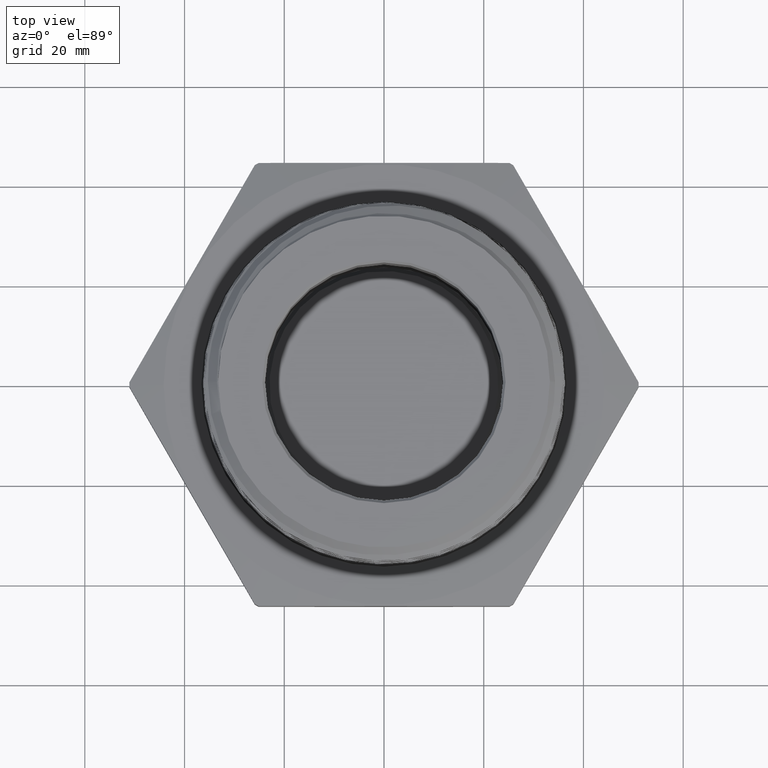
[diagram: clean part render]
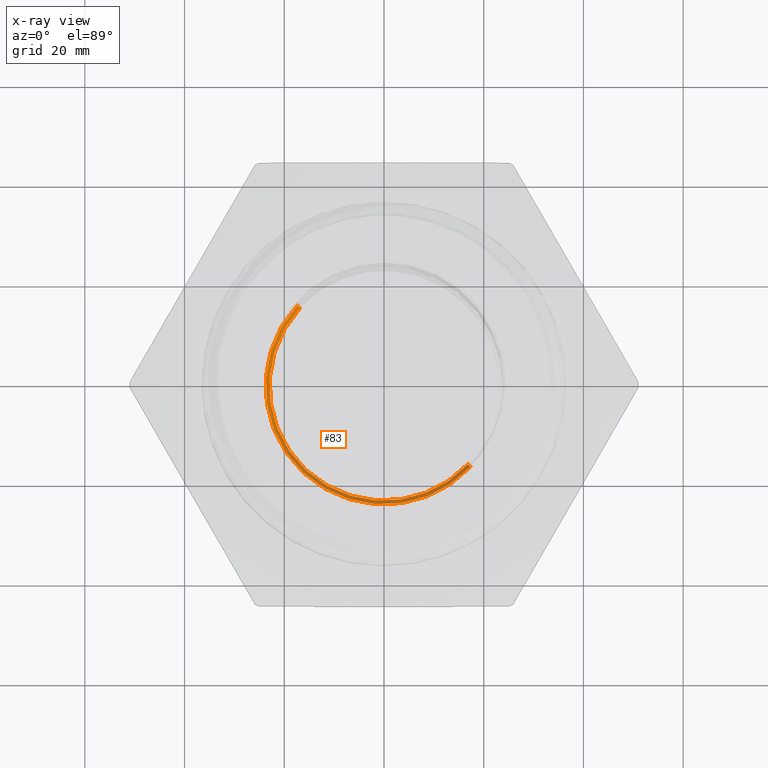
[diagram: x-ray — body ghosted, one internal face saturated and labeled with its STEP entity id]
A machine part, top view, then the same camera in x-ray: the body is ghosted and one INTERNAL B-rep face — a face not visible from any outside direction — is saturated and labeled: STEP entity #83.
In plain terms, the highlighted conical surface has half-angle 45 deg.
Its self-contained STEP definition (entity closure, byte-faithful):
#83 = ADVANCED_FACE ( 'NONE', ( #8116 ), #8121, .T. ) ;
#176 = AXIS2_PLACEMENT_3D ( 'NONE', #4977, #4978, #4979 ) ;
#178 = AXIS2_PLACEMENT_3D ( 'NONE', #4983, #4984, #4985 ) ;
#993 = LINE ( 'NONE', #5790, #996 ) ;
#996 = VECTOR ( 'NONE', #5792, 39.37007874015748100 ) ;
#2415 = AXIS2_PLACEMENT_3D ( 'NONE', #3508, #3504, #3505 ) ;
#2488 = ORIENTED_EDGE ( 'NONE', *, *, #6579, .F. ) ;
#2489 = ORIENTED_EDGE ( 'NONE', *, *, #6463, .F. ) ;
#2499 = VERTEX_POINT ( 'NONE', #3709 ) ;
#2503 = VERTEX_POINT ( 'NONE', #3713 ) ;
#2506 = VERTEX_POINT ( 'NONE', #3716 ) ;
#2508 = VERTEX_POINT ( 'NONE', #3718 ) ;
#2809 = LINE ( 'NONE', #4966, #2813 ) ;
#2813 = VECTOR ( 'NONE', #4964, 39.37007874015748100 ) ;
#2818 = CIRCLE ( 'NONE', #176, 0.9350000000000000500 ) ;
#2820 = CIRCLE ( 'NONE', #178, 0.9050000000000084600 ) ;
#3504 = DIRECTION ( 'NONE',  ( -0.0000000000000000000, -0.0000000000000000000, 1.000000000000000000 ) ) ;
#3505 = DIRECTION ( 'NONE',  ( 1.000000000000000000, 0.0000000000000000000, 0.0000000000000000000 ) ) ;
#3508 = CARTESIAN_POINT ( 'NONE',  ( 0.1853830760401613500, -0.6095117751713916600, 0.02999999999999162000 ) ) ;
#3709 = CARTESIAN_POINT ( 'NONE',  ( 1.120383076040161400, -0.6095117751713914300, 0.02999999999999162000 ) ) ;
#3713 = CARTESIAN_POINT ( 'NONE',  ( -0.7496169239598385900, -0.6095117751713916600, 0.02999999999999162000 ) ) ;
#3716 = CARTESIAN_POINT ( 'NONE',  ( -0.7196169239598471100, -0.6095117751713914300, 0.0000000000000000000 ) ) ;
#3718 = CARTESIAN_POINT ( 'NONE',  ( 1.090383076040169800, -0.6095117751713916600, 0.0000000000000000000 ) ) ;
#4964 = DIRECTION ( 'NONE',  ( 0.7071067811865459100, 0.0000000000000000000, 0.7071067811865491300 ) ) ;
#4966 = CARTESIAN_POINT ( 'NONE',  ( 1.120383076040161400, -0.6095117751713916600, 0.02999999999999162000 ) ) ;
#4977 = CARTESIAN_POINT ( 'NONE',  ( 0.1853830760401613500, -0.6095117751713916600, 0.02999999999999162000 ) ) ;
#4978 = DIRECTION ( 'NONE',  ( -0.0000000000000000000, -0.0000000000000000000, 1.000000000000000000 ) ) ;
#4979 = DIRECTION ( 'NONE',  ( 1.000000000000000000, 0.0000000000000000000, 0.0000000000000000000 ) ) ;
#4983 = CARTESIAN_POINT ( 'NONE',  ( 0.1853830760401613500, -0.6095117751713916600, 0.0000000000000000000 ) ) ;
#4984 = DIRECTION ( 'NONE',  ( -0.0000000000000000000, -0.0000000000000000000, -1.000000000000000000 ) ) ;
#4985 = DIRECTION ( 'NONE',  ( 1.000000000000000000, 0.0000000000000000000, 0.0000000000000000000 ) ) ;
#5790 = CARTESIAN_POINT ( 'NONE',  ( -0.7496169239598385900, -0.6095117751713914300, 0.02999999999999162000 ) ) ;
#5792 = DIRECTION ( 'NONE',  ( -0.7071067811865459100, 8.659560562354914400E-017, 0.7071067811865491300 ) ) ;
#6457 = EDGE_CURVE ( 'NONE', #2508, #2499, #2809, .T. ) ;
#6461 = EDGE_CURVE ( 'NONE', #2503, #2499, #2818, .T. ) ;
#6463 = EDGE_CURVE ( 'NONE', #2508, #2506, #2820, .T. ) ;
#6579 = EDGE_CURVE ( 'NONE', #2506, #2503, #993, .T. ) ;
#7992 = ORIENTED_EDGE ( 'NONE', *, *, #6461, .F. ) ;
#8014 = EDGE_LOOP ( 'NONE', ( #2488, #2489, #8029, #7992 ) ) ;
#8029 = ORIENTED_EDGE ( 'NONE', *, *, #6457, .T. ) ;
#8116 = FACE_OUTER_BOUND ( 'NONE', #8014, .T. ) ;
#8121 = CONICAL_SURFACE ( 'NONE', #2415, 0.9350000000000000500, 0.7853981633974460600 ) ;